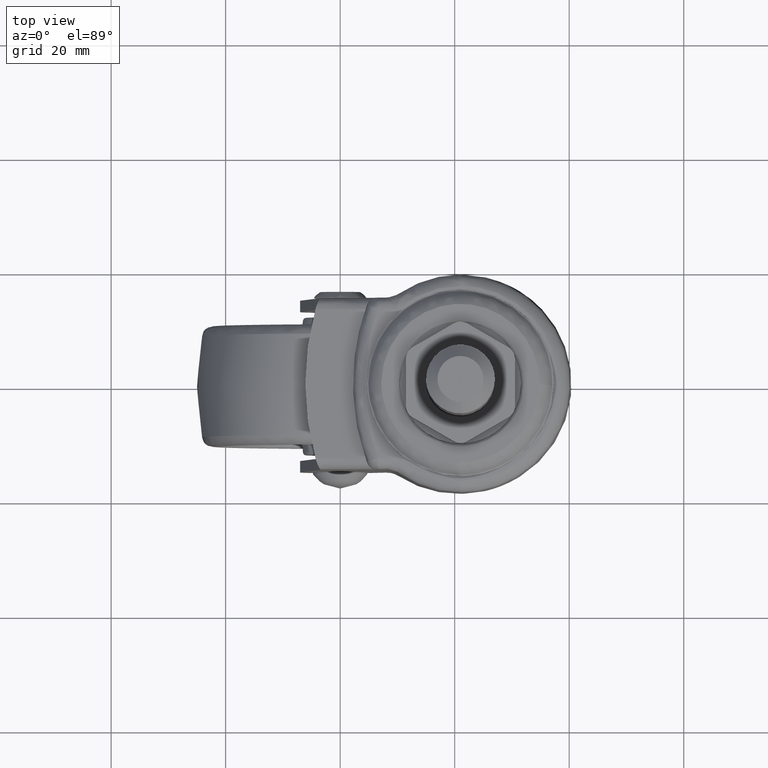
[diagram: clean part render]
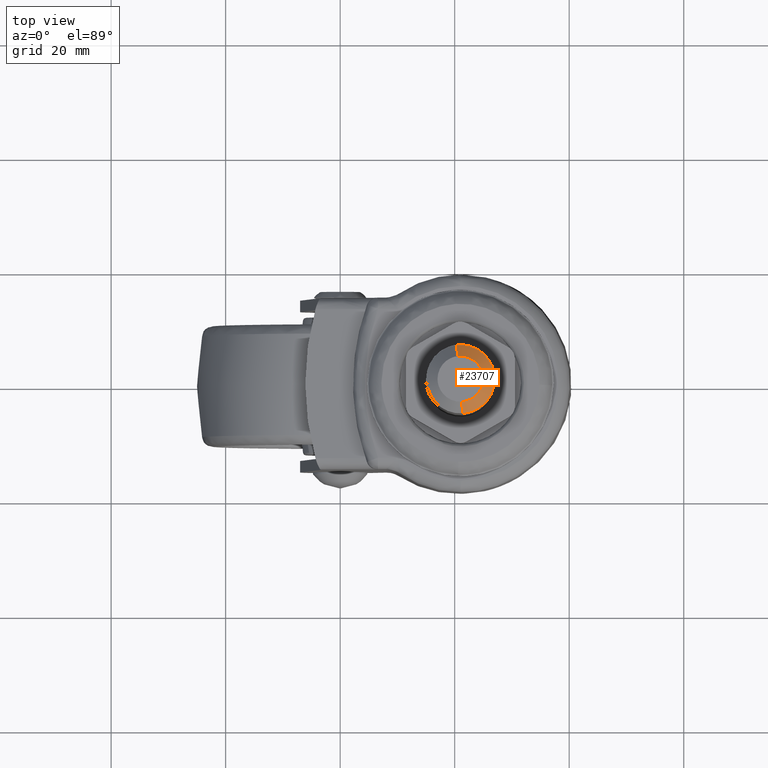
[diagram: same view with one face highlighted and labeled with its STEP entity id]
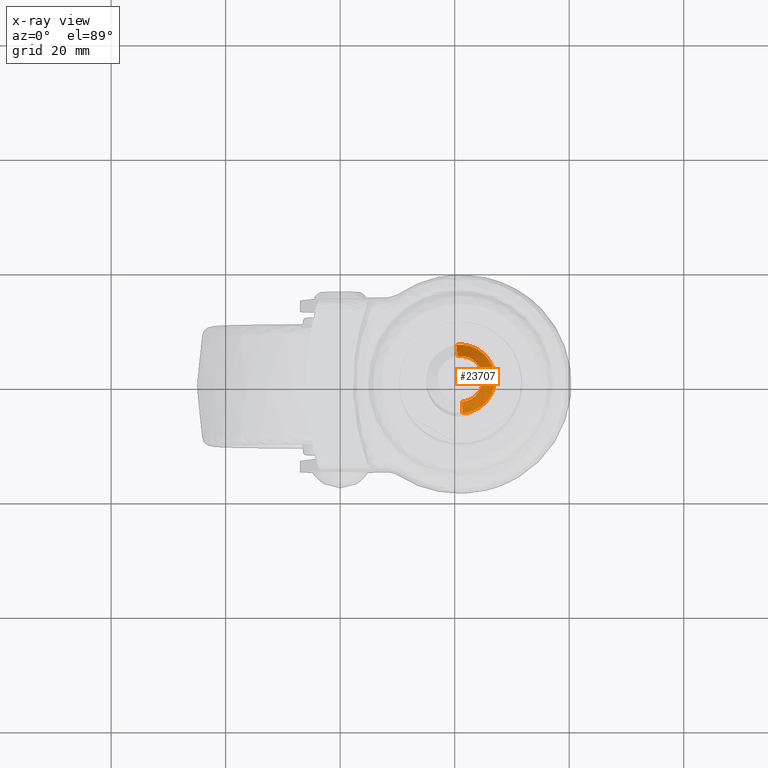
[diagram: x-ray of the same camera — body ghosted, the highlighted face saturated]
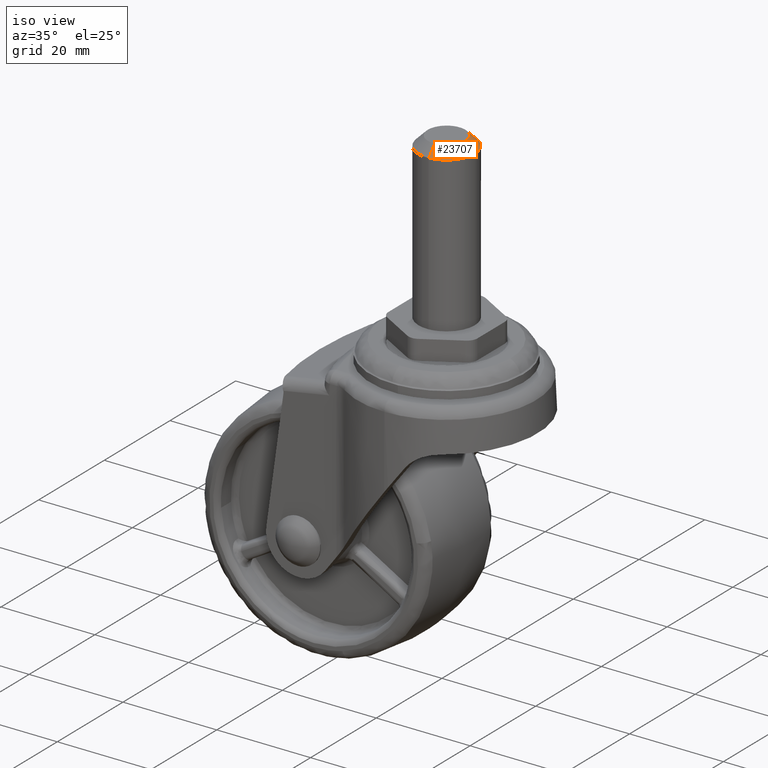
[diagram: same view with one face highlighted and labeled with its STEP entity id]
A machine part, top view. The second image highlights one B-rep face of the part: STEP entity #23707.
The next image is the same camera in x-ray: the body ghosted, the highlighted face saturated — about 0% of this face is hidden behind the body in this view.
A second angle (iso view) of the same face is appended — the face is thin or edge-on in the first view.
In plain terms, the highlighted face is a freeform B-spline surface patch.
Its self-contained STEP definition (entity closure, byte-faithful):
#23453=CARTESIAN_POINT('',(26.616861472648331,2.109707846379792,76.0));
#23454=VERTEX_POINT('',#23453);
#23455=CARTESIAN_POINT('',(26.999999999999801,1.421085E-014,76.0));
#23456=VERTEX_POINT('',#23455);
#23457=CARTESIAN_POINT('',(26.616861472648335,2.109707846379792,76.0));
#23458=CARTESIAN_POINT('',(26.999999999999801,1.089644316434104,75.999999999999986));
#23459=CARTESIAN_POINT('',(26.999999999999801,1.421085E-014,76.0));
#23467=(BOUNDED_CURVE()B_SPLINE_CURVE(2,(#23457,#23458,#23459),.UNSPECIFIED.,.F.,.U.)B_SPLINE_CURVE_WITH_KNOTS((3,3),(0.440284170897199,0.500000000000000),.UNSPECIFIED.)CURVE()GEOMETRIC_REPRESENTATION_ITEM()RATIONAL_B_SPLINE_CURVE((0.893499554633672,0.930038554399866,1.0))REPRESENTATION_ITEM(''));
#23468=EDGE_CURVE('',#23454,#23456,#23467,.T.);
#23470=CARTESIAN_POINT('',(21.366291237297311,-5.988808790537149,75.999999999976922));
#23471=VERTEX_POINT('',#23470);
#23472=CARTESIAN_POINT('',(26.999999999999801,1.421085E-014,76.0));
#23473=CARTESIAN_POINT('',(26.999999999999801,-5.644236401103552,75.999999999999986));
#23474=CARTESIAN_POINT('',(21.366291237297311,-5.988808790537149,75.999999999976922));
#23482=(BOUNDED_CURVE()B_SPLINE_CURVE(2,(#23472,#23473,#23474),.UNSPECIFIED.,.F.,.U.)B_SPLINE_CURVE_WITH_KNOTS((3,3),(0.500000000000000,0.739332962231886),.UNSPECIFIED.)CURVE()GEOMETRIC_REPRESENTATION_ITEM()RATIONAL_B_SPLINE_CURVE((1.0,0.719603993294978,0.976072041651594))REPRESENTATION_ITEM(''));
#23483=EDGE_CURVE('',#23456,#23471,#23482,.T.);
#23552=CARTESIAN_POINT('',(20.291794592050000,5.958057158181903,75.999999999998778));
#23553=VERTEX_POINT('',#23552);
#23554=CARTESIAN_POINT('',(20.291794592050000,5.958057158181903,75.999999999998778));
#23555=CARTESIAN_POINT('',(20.644655282079121,5.999999999999814,76.0));
#23556=CARTESIAN_POINT('',(21.0,5.999999999999814,76.0));
#23557=CARTESIAN_POINT('',(25.155657574118315,5.999999999999813,76.000000000000014));
#23558=CARTESIAN_POINT('',(26.616861472648335,2.109707846379792,76.0));
#23566=(BOUNDED_CURVE()B_SPLINE_CURVE(2,(#23554,#23555,#23556,#23557,#23558),.UNSPECIFIED.,.F.,.U.)B_SPLINE_CURVE_WITH_KNOTS((3,2,3),(0.229562473515115,0.250000000000000,0.440284170897199),.UNSPECIFIED.)CURVE()GEOMETRIC_REPRESENTATION_ITEM()RATIONAL_B_SPLINE_CURVE((0.956026754186848,0.976055948333027,1.0,0.777068226786681,0.893499554633673))REPRESENTATION_ITEM(''));
#23567=EDGE_CURVE('',#23553,#23454,#23566,.T.);
#23636=CARTESIAN_POINT('',(20.533764773105830,3.922387629136286,78.050000000000011));
#23637=CARTESIAN_POINT('',(20.646021821880009,3.935731081021795,78.050000000000011));
#23638=CARTESIAN_POINT('',(20.758858268837329,3.942632453766176,78.050000000000011));
#23639=CARTESIAN_POINT('',(24.701490722603488,4.183774184928849,78.050000000000011));
#23640=CARTESIAN_POINT('',(24.942632453766159,0.241141731162686,78.050000000000011));
#23641=CARTESIAN_POINT('',(25.183774184928836,-3.701490722603476,78.050000000000011));
#23642=CARTESIAN_POINT('',(21.241141731162671,-3.942632453766148,78.050000000000011));
#23643=CARTESIAN_POINT('',(20.285745337533314,6.008948896407969,75.948749999999990));
#23644=CARTESIAN_POINT('',(20.457718873329458,6.029390557983207,75.948749999999976));
#23645=CARTESIAN_POINT('',(20.630580025139711,6.039963198950153,75.948749999999990));
#23646=CARTESIAN_POINT('',(26.670543224089851,6.409383173810444,75.948749999999990));
#23647=CARTESIAN_POINT('',(27.039963198950140,0.369419974860306,75.948749999999990));
#23648=CARTESIAN_POINT('',(27.409383173810429,-5.670543224089832,75.948749999999990));
#23649=CARTESIAN_POINT('',(21.369419974860289,-6.039963198950124,75.948749999999990));
#23657=(BOUNDED_SURFACE()B_SPLINE_SURFACE(2,1,((#23636,#23643),(#23637,#23644),(#23638,#23645),(#23639,#23646),(#23640,#23647),(#23641,#23648),(#23642,#23649)),.UNSPECIFIED.,.F.,.F.,.U.)B_SPLINE_SURFACE_WITH_KNOTS((3,2,2,3),(2,2),(0.0,0.401041571089619,10.427080848330091,20.453120125570550),(0.0,2.971616247936511),.UNSPECIFIED.)GEOMETRIC_REPRESENTATION_ITEM()RATIONAL_B_SPLINE_SURFACE(((0.977505800795127,0.977505800795127),(0.988284271247462,0.988284271247462),(1.0,1.0),(0.707106781186548,0.707106781186548),(1.0,1.0),(0.707106781186548,0.707106781186548),(1.0,1.0)))REPRESENTATION_ITEM('')SURFACE());
#23658=ORIENTED_EDGE('',*,*,#23567,.F.);
#23659=CARTESIAN_POINT('',(20.527863060496639,3.972038105461579,77.999999999889511));
#23660=VERTEX_POINT('',#23659);
#23661=CARTESIAN_POINT('',(20.527863060496639,3.972038105461579,77.999999999889511));
#23662=CARTESIAN_POINT('',(20.291794592050000,5.958057158181903,75.999999999998778));
#23663=QUASI_UNIFORM_CURVE('',1,(#23661,#23662),.UNSPECIFIED.,.F.,.U.);
#23664=EDGE_CURVE('',#23660,#23553,#23663,.T.);
#23665=ORIENTED_EDGE('',*,*,#23664,.F.);
#23666=CARTESIAN_POINT('',(24.999999999999812,1.421085E-014,78.0));
#23667=VERTEX_POINT('',#23666);
#23668=CARTESIAN_POINT('',(20.527863060496649,3.972038105461579,77.999999999889525));
#23669=CARTESIAN_POINT('',(20.763103520519934,3.999999999999818,78.0));
#23670=CARTESIAN_POINT('',(21.0,3.999999999999819,78.0));
#23671=CARTESIAN_POINT('',(24.999999999999805,3.999999999999818,78.0));
#23672=CARTESIAN_POINT('',(24.999999999999812,1.421085E-014,78.0));
#23680=(BOUNDED_CURVE()B_SPLINE_CURVE(2,(#23668,#23669,#23670,#23671,#23672),.UNSPECIFIED.,.F.,.U.)B_SPLINE_CURVE_WITH_KNOTS((3,2,3),(0.229562473442180,0.250000000000000,0.500000000000000),.UNSPECIFIED.)CURVE()GEOMETRIC_REPRESENTATION_ITEM()RATIONAL_B_SPLINE_CURVE((0.956026754043893,0.976055948247579,1.0,0.707106781186548,1.0))REPRESENTATION_ITEM(''));
#23681=EDGE_CURVE('',#23660,#23667,#23680,.T.);
#23682=ORIENTED_EDGE('',*,*,#23681,.T.);
#23683=CARTESIAN_POINT('',(21.244194158947710,-3.992539193744027,77.999999999893987));
#23684=VERTEX_POINT('',#23683);
#23685=CARTESIAN_POINT('',(24.999999999999812,1.421085E-014,78.0));
#23686=CARTESIAN_POINT('',(24.999999999999815,-3.762824266108369,78.000000000000014));
#23687=CARTESIAN_POINT('',(21.244194158947707,-3.992539193744027,77.999999999893987));
#23695=(BOUNDED_CURVE()B_SPLINE_CURVE(2,(#23685,#23686,#23687),.UNSPECIFIED.,.F.,.U.)B_SPLINE_CURVE_WITH_KNOTS((3,3),(0.500000000000000,0.739332962172663),.UNSPECIFIED.)CURVE()GEOMETRIC_REPRESENTATION_ITEM()RATIONAL_B_SPLINE_CURVE((1.0,0.719603993364362,0.976072041524666))REPRESENTATION_ITEM(''));
#23696=EDGE_CURVE('',#23667,#23684,#23695,.T.);
#23697=ORIENTED_EDGE('',*,*,#23696,.T.);
#23698=CARTESIAN_POINT('',(21.244194158947710,-3.992539193744027,77.999999999893987));
#23699=CARTESIAN_POINT('',(21.366291237297311,-5.988808790537149,75.999999999976922));
#23700=QUASI_UNIFORM_CURVE('',1,(#23698,#23699),.UNSPECIFIED.,.F.,.U.);
#23701=EDGE_CURVE('',#23684,#23471,#23700,.T.);
#23702=ORIENTED_EDGE('',*,*,#23701,.T.);
#23703=ORIENTED_EDGE('',*,*,#23483,.F.);
#23704=ORIENTED_EDGE('',*,*,#23468,.F.);
#23705=EDGE_LOOP('',(#23658,#23665,#23682,#23697,#23702,#23703,#23704));
#23706=FACE_OUTER_BOUND('',#23705,.T.);
#23707=ADVANCED_FACE('',(#23706),#23657,.T.);